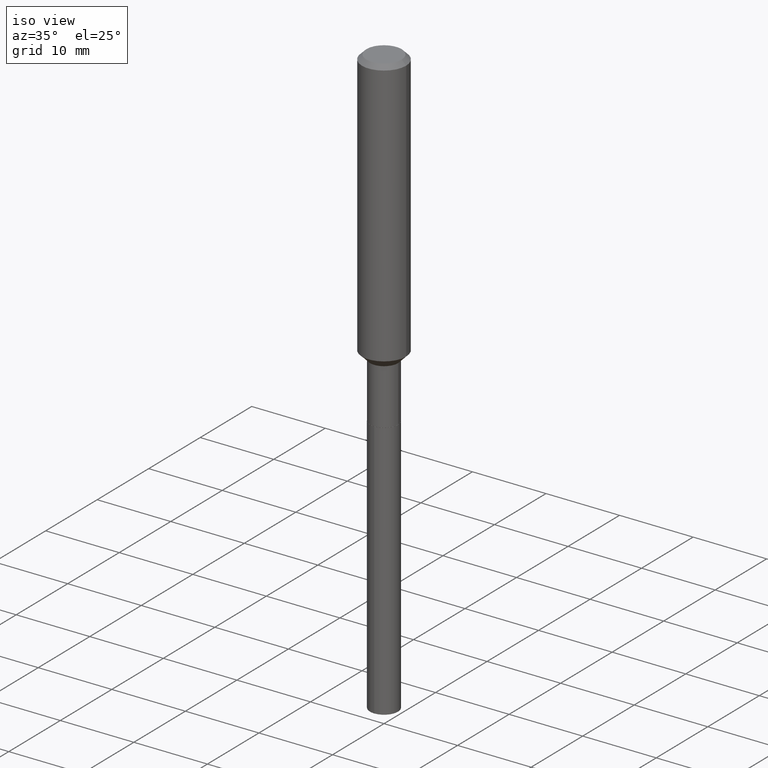
[diagram: clean part render]
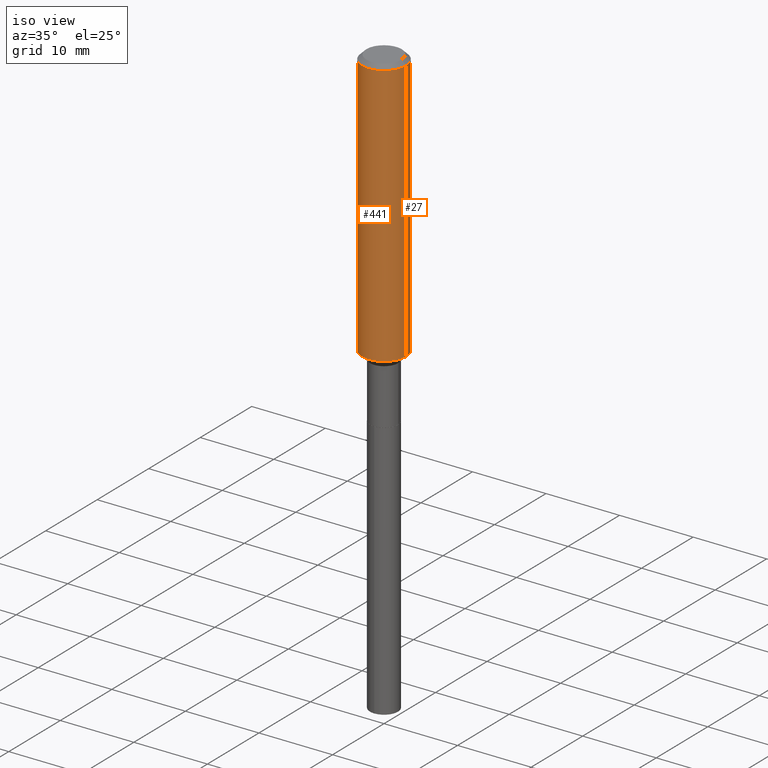
[diagram: same view with one multi-face feature highlighted, each face labeled with its STEP entity id]
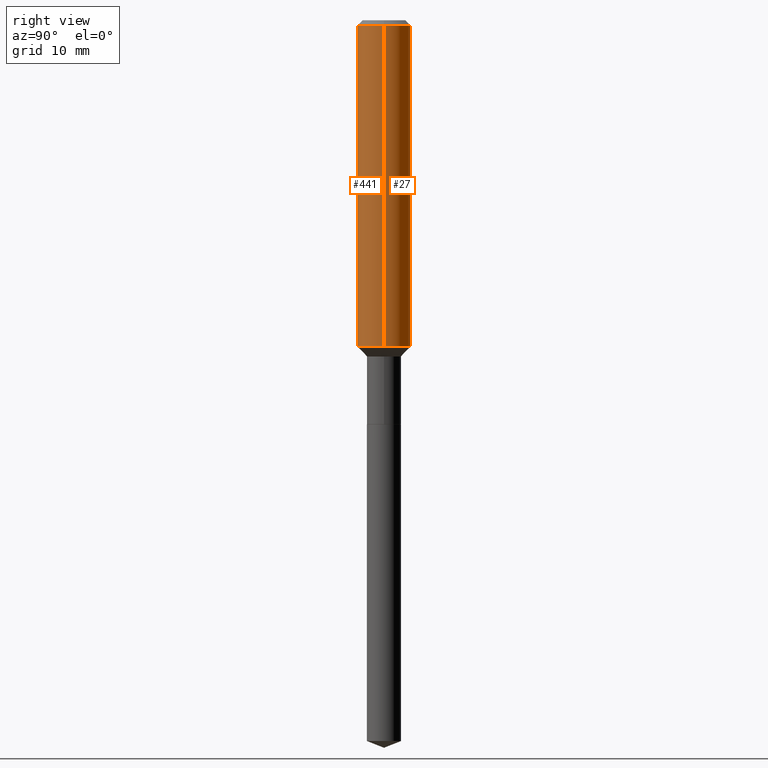
[diagram: same view with one multi-face feature highlighted, each face labeled with its STEP entity id]
A machine part, iso view. The highlighted faces form ONE feature: a constant-radius fillet chain: 2 tangent blend faces with common blend radius 2.9997 mm. The faces share edges in the B-rep.
A second angle (right view) of the same feature is appended — it is thin or edge-on in the first view.
Their STEP definitions:
[1] entity #441 (Cylinder):
#28 = DIRECTION ( 'NONE',  ( 1.000000000000000000, -6.982962677686266711E-15, 4.876176775795936353E-29 ) ) ;
#31 = DIRECTION ( 'NONE',  ( -2.445468806185136597E-29, 3.491481338843145583E-15, 1.000000000000000000 ) ) ;
#57 = EDGE_CURVE ( 'NONE', #320, #282, #338, .T. ) ;
#70 = CIRCLE ( 'NONE', #128, 0.1181000000000001632 ) ;
#117 = DIRECTION ( 'NONE',  ( 1.000000000000000000, -6.982962677686270655E-15, 0.000000000000000000 ) ) ;
#128 = AXIS2_PLACEMENT_3D ( 'NONE', #309, #452, #117 ) ;
#130 = CARTESIAN_POINT ( 'NONE',  ( 0.1181000000000001632, -5.818902799315985254E-15, -1.430400000000000116 ) ) ;
#143 = CARTESIAN_POINT ( 'NONE',  ( -0.1180999999999999966, -1.699190877219676055E-15, -0.02362000000000014435 ) ) ;
#144 = DIRECTION ( 'NONE',  ( -2.445468806185136877E-29, 3.491481338843145188E-15, 1.000000000000000000 ) ) ;
#146 = EDGE_LOOP ( 'NONE', ( #289, #208, #383, #237 ) ) ;
#155 = DIRECTION ( 'NONE',  ( -2.445468806185136597E-29, 3.491481338843145583E-15, 1.000000000000000000 ) ) ;
#156 = VECTOR ( 'NONE', #426, 39.37007874015748143 ) ;
#160 = CIRCLE ( 'NONE', #442, 0.1180999999999999966 ) ;
#196 = EDGE_CURVE ( 'NONE', #427, #222, #349, .T. ) ;
#208 = ORIENTED_EDGE ( 'NONE', *, *, #306, .T. ) ;
#216 = EDGE_CURVE ( 'NONE', #222, #282, #160, .T. ) ;
#222 = VERTEX_POINT ( 'NONE', #143 ) ;
#229 = CARTESIAN_POINT ( 'NONE',  ( 0.1180999999999999966, -9.071566814582237199E-16, -0.02362000000000014435 ) ) ;
#236 = DIRECTION ( 'NONE',  ( 1.000000000000000000, -6.982962677686266711E-15, 0.000000000000000000 ) ) ;
#237 = ORIENTED_EDGE ( 'NONE', *, *, #216, .F. ) ;
#255 = VECTOR ( 'NONE', #144, 39.37007874015748143 ) ;
#267 = CARTESIAN_POINT ( 'NONE',  ( -0.1181000000000001632, -4.155063936148555639E-15, -1.430400000000000116 ) ) ;
#269 = CARTESIAN_POINT ( 'NONE',  ( 5.776197320209328408E-31, -8.246878922347560526E-17, -0.02362000000000014435 ) ) ;
#274 = CYLINDRICAL_SURFACE ( 'NONE', #406, 0.1181000000000000799 ) ;
#282 = VERTEX_POINT ( 'NONE', #229 ) ;
#289 = ORIENTED_EDGE ( 'NONE', *, *, #196, .F. ) ;
#306 = EDGE_CURVE ( 'NONE', #427, #320, #70, .T. ) ;
#309 = CARTESIAN_POINT ( 'NONE',  ( 3.497998580367219776E-29, -4.994214907081235414E-15, -1.430400000000000116 ) ) ;
#320 = VERTEX_POINT ( 'NONE', #130 ) ;
#338 = LINE ( 'NONE', #478, #255 ) ;
#339 = CARTESIAN_POINT ( 'NONE',  ( -0.1181000000000000799, 8.391509709326788873E-16, -5.809262341591047988E-30 ) ) ;
#347 = CARTESIAN_POINT ( 'NONE',  ( 0.000000000000000000, 0.000000000000000000, 0.000000000000000000 ) ) ;
#349 = LINE ( 'NONE', #339, #156 ) ;
#383 = ORIENTED_EDGE ( 'NONE', *, *, #57, .T. ) ;
#406 = AXIS2_PLACEMENT_3D ( 'NONE', #347, #31, #28 ) ;
#426 = DIRECTION ( 'NONE',  ( -2.445468806185136877E-29, 3.491481338843145188E-15, 1.000000000000000000 ) ) ;
#427 = VERTEX_POINT ( 'NONE', #267 ) ;
#441 = ADVANCED_FACE ( 'NONE', ( #488 ), #274, .T. ) ;
#442 = AXIS2_PLACEMENT_3D ( 'NONE', #269, #155, #236 ) ;
#452 = DIRECTION ( 'NONE',  ( -2.445468806185136597E-29, 3.491481338843145583E-15, 1.000000000000000000 ) ) ;
#478 = CARTESIAN_POINT ( 'NONE',  ( 0.1181000000000000799, -8.246878922347486570E-16, 5.758764772215004644E-30 ) ) ;
#488 = FACE_OUTER_BOUND ( 'NONE', #146, .T. ) ;
[2] entity #27 (Cylinder):
#27 = ADVANCED_FACE ( 'NONE', ( #119 ), #268, .T. ) ;
#57 = EDGE_CURVE ( 'NONE', #320, #282, #338, .T. ) ;
#66 = CIRCLE ( 'NONE', #230, 0.1181000000000001632 ) ;
#118 = AXIS2_PLACEMENT_3D ( 'NONE', #150, #318, #283 ) ;
#119 = FACE_OUTER_BOUND ( 'NONE', #378, .T. ) ;
#130 = CARTESIAN_POINT ( 'NONE',  ( 0.1181000000000001632, -5.818902799315985254E-15, -1.430400000000000116 ) ) ;
#143 = CARTESIAN_POINT ( 'NONE',  ( -0.1180999999999999966, -1.699190877219676055E-15, -0.02362000000000014435 ) ) ;
#144 = DIRECTION ( 'NONE',  ( -2.445468806185136877E-29, 3.491481338843145188E-15, 1.000000000000000000 ) ) ;
#150 = CARTESIAN_POINT ( 'NONE',  ( 5.776197320209328408E-31, -8.246878922347560526E-17, -0.02362000000000014435 ) ) ;
#156 = VECTOR ( 'NONE', #426, 39.37007874015748143 ) ;
#176 = EDGE_CURVE ( 'NONE', #282, #222, #217, .T. ) ;
#187 = EDGE_CURVE ( 'NONE', #320, #427, #66, .T. ) ;
#194 = DIRECTION ( 'NONE',  ( 1.000000000000000000, -6.982962677686266711E-15, 4.876176775795936353E-29 ) ) ;
#196 = EDGE_CURVE ( 'NONE', #427, #222, #349, .T. ) ;
#217 = CIRCLE ( 'NONE', #118, 0.1180999999999999966 ) ;
#222 = VERTEX_POINT ( 'NONE', #143 ) ;
#223 = AXIS2_PLACEMENT_3D ( 'NONE', #420, #275, #194 ) ;
#229 = CARTESIAN_POINT ( 'NONE',  ( 0.1180999999999999966, -9.071566814582237199E-16, -0.02362000000000014435 ) ) ;
#230 = AXIS2_PLACEMENT_3D ( 'NONE', #379, #336, #273 ) ;
#252 = ORIENTED_EDGE ( 'NONE', *, *, #187, .T. ) ;
#255 = VECTOR ( 'NONE', #144, 39.37007874015748143 ) ;
#267 = CARTESIAN_POINT ( 'NONE',  ( -0.1181000000000001632, -4.155063936148555639E-15, -1.430400000000000116 ) ) ;
#268 = CYLINDRICAL_SURFACE ( 'NONE', #223, 0.1181000000000000799 ) ;
#273 = DIRECTION ( 'NONE',  ( 1.000000000000000000, -6.982962677686270655E-15, 0.000000000000000000 ) ) ;
#275 = DIRECTION ( 'NONE',  ( -2.445468806185136597E-29, 3.491481338843145583E-15, 1.000000000000000000 ) ) ;
#282 = VERTEX_POINT ( 'NONE', #229 ) ;
#283 = DIRECTION ( 'NONE',  ( 1.000000000000000000, -6.982962677686266711E-15, 0.000000000000000000 ) ) ;
#317 = ORIENTED_EDGE ( 'NONE', *, *, #196, .T. ) ;
#318 = DIRECTION ( 'NONE',  ( -2.445468806185136597E-29, 3.491481338843145583E-15, 1.000000000000000000 ) ) ;
#320 = VERTEX_POINT ( 'NONE', #130 ) ;
#336 = DIRECTION ( 'NONE',  ( -2.445468806185136597E-29, 3.491481338843145583E-15, 1.000000000000000000 ) ) ;
#338 = LINE ( 'NONE', #478, #255 ) ;
#339 = CARTESIAN_POINT ( 'NONE',  ( -0.1181000000000000799, 8.391509709326788873E-16, -5.809262341591047988E-30 ) ) ;
#349 = LINE ( 'NONE', #339, #156 ) ;
#378 = EDGE_LOOP ( 'NONE', ( #252, #317, #487, #451 ) ) ;
#379 = CARTESIAN_POINT ( 'NONE',  ( 3.497998580367219776E-29, -4.994214907081235414E-15, -1.430400000000000116 ) ) ;
#420 = CARTESIAN_POINT ( 'NONE',  ( 0.000000000000000000, 0.000000000000000000, 0.000000000000000000 ) ) ;
#426 = DIRECTION ( 'NONE',  ( -2.445468806185136877E-29, 3.491481338843145188E-15, 1.000000000000000000 ) ) ;
#427 = VERTEX_POINT ( 'NONE', #267 ) ;
#451 = ORIENTED_EDGE ( 'NONE', *, *, #57, .F. ) ;
#478 = CARTESIAN_POINT ( 'NONE',  ( 0.1181000000000000799, -8.246878922347486570E-16, 5.758764772215004644E-30 ) ) ;
#487 = ORIENTED_EDGE ( 'NONE', *, *, #176, .F. ) ;